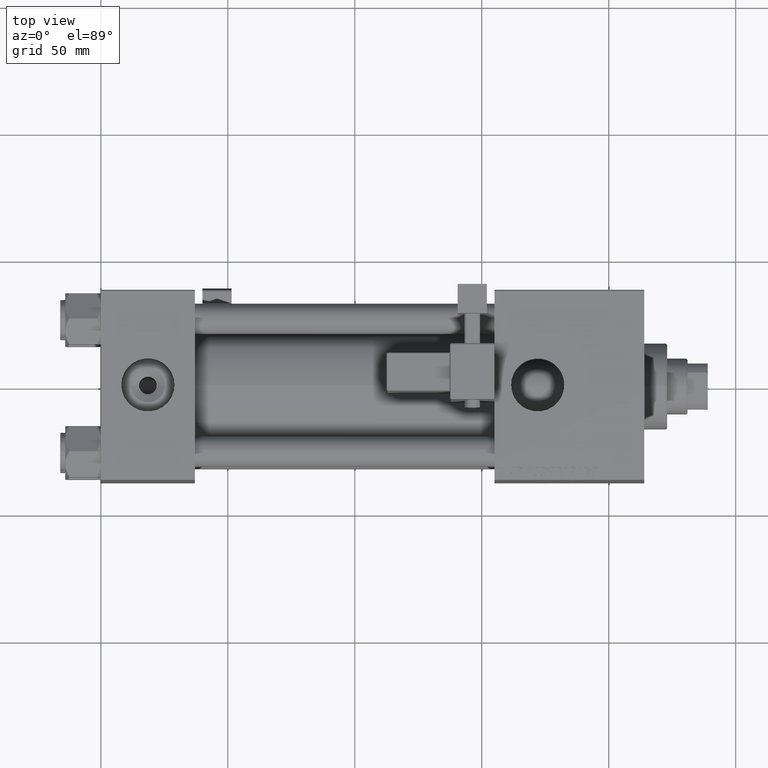
[diagram: clean part render]
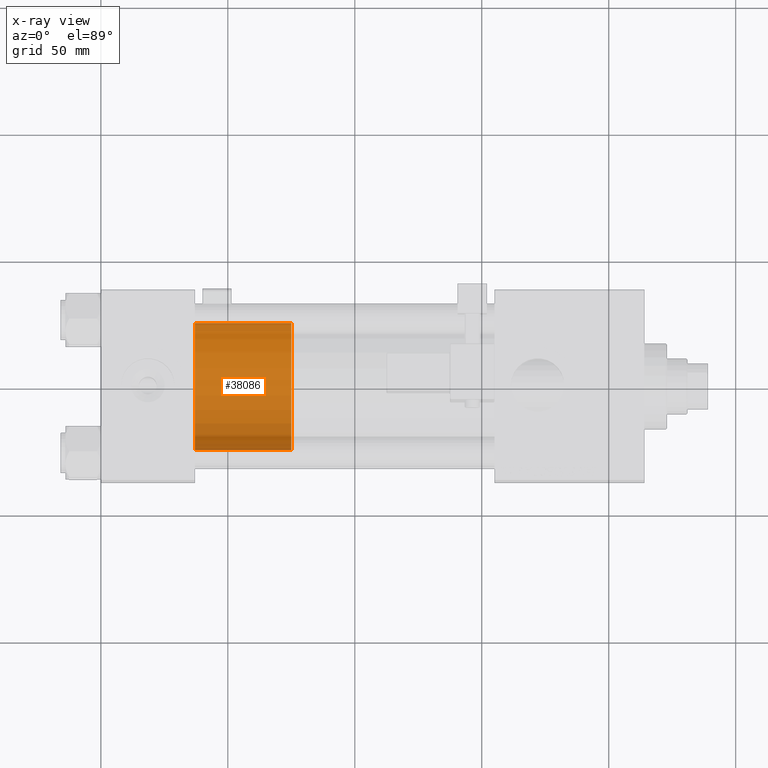
[diagram: x-ray — body ghosted, one internal face saturated and labeled with its STEP entity id]
A machine part, top view, then the same camera in x-ray: the body is ghosted and one INTERNAL B-rep face — a face not visible from any outside direction — is saturated and labeled: STEP entity #38086.
In plain terms, the highlighted cylindrical surface (partial cylindrical patch) has radius 25 mm, axis along (-1, 0, 0).
Its self-contained STEP definition (entity closure, byte-faithful):
#1955 = ORIENTED_EDGE ( 'NONE', *, *, #47544, .T. ) ;
#6400 = CARTESIAN_POINT ( 'NONE',  ( 0.000000000000000000, 0.000000000000000000, 38.00000000000000000 ) ) ;
#8952 = ORIENTED_EDGE ( 'NONE', *, *, #12469, .T. ) ;
#9104 = DIRECTION ( 'NONE',  ( 0.000000000000000000, 0.000000000000000000, 1.000000000000000000 ) ) ;
#10400 = LINE ( 'NONE', #46798, #52294 ) ;
#11454 = CARTESIAN_POINT ( 'NONE',  ( -25.00000000000000000, 0.000000000000000000, 38.00000000000000000 ) ) ;
#12469 = EDGE_CURVE ( 'NONE', #36473, #19232, #51800, .T. ) ;
#12818 = DIRECTION ( 'NONE',  ( 1.000000000000000000, 0.000000000000000000, 0.000000000000000000 ) ) ;
#13342 = CARTESIAN_POINT ( 'NONE',  ( 0.000000000000000000, 0.000000000000000000, 0.000000000000000000 ) ) ;
#14903 = DIRECTION ( 'NONE',  ( -0.000000000000000000, -0.000000000000000000, -1.000000000000000000 ) ) ;
#18380 = FACE_OUTER_BOUND ( 'NONE', #38824, .T. ) ;
#19232 = VERTEX_POINT ( 'NONE', #47188 ) ;
#22337 = DIRECTION ( 'NONE',  ( 1.000000000000000000, 0.000000000000000000, 0.000000000000000000 ) ) ;
#22347 = ORIENTED_EDGE ( 'NONE', *, *, #25884, .F. ) ;
#22595 = DIRECTION ( 'NONE',  ( 0.000000000000000000, 0.000000000000000000, 1.000000000000000000 ) ) ;
#24205 = CARTESIAN_POINT ( 'NONE',  ( 25.00000000000000000, 3.061616997868383043E-15, 0.000000000000000000 ) ) ;
#25884 = EDGE_CURVE ( 'NONE', #43197, #36458, #40094, .T. ) ;
#25962 = AXIS2_PLACEMENT_3D ( 'NONE', #46543, #27114, #30056 ) ;
#27114 = DIRECTION ( 'NONE',  ( -0.000000000000000000, -0.000000000000000000, -1.000000000000000000 ) ) ;
#30056 = DIRECTION ( 'NONE',  ( -1.000000000000000000, 0.000000000000000000, 0.000000000000000000 ) ) ;
#34305 = CYLINDRICAL_SURFACE ( 'NONE', #25962, 25.00000000000000000 ) ;
#36458 = VERTEX_POINT ( 'NONE', #11454 ) ;
#36473 = VERTEX_POINT ( 'NONE', #24205 ) ;
#37176 = CARTESIAN_POINT ( 'NONE',  ( 25.00000000000000000, 3.061616997868383043E-15, 38.00000000000000000 ) ) ;
#38067 = EDGE_CURVE ( 'NONE', #36458, #19232, #10400, .T. ) ;
#38086 = ADVANCED_FACE ( 'NONE', ( #18380 ), #34305, .T. ) ;
#38824 = EDGE_LOOP ( 'NONE', ( #22347, #1955, #8952, #45701 ) ) ;
#40094 = CIRCLE ( 'NONE', #45219, 25.00000000000000000 ) ;
#40763 = AXIS2_PLACEMENT_3D ( 'NONE', #13342, #9104, #12818 ) ;
#41787 = DIRECTION ( 'NONE',  ( -0.000000000000000000, -0.000000000000000000, -1.000000000000000000 ) ) ;
#43197 = VERTEX_POINT ( 'NONE', #37176 ) ;
#45219 = AXIS2_PLACEMENT_3D ( 'NONE', #6400, #22595, #22337 ) ;
#45701 = ORIENTED_EDGE ( 'NONE', *, *, #38067, .F. ) ;
#46032 = LINE ( 'NONE', #50286, #50089 ) ;
#46543 = CARTESIAN_POINT ( 'NONE',  ( 0.000000000000000000, 0.000000000000000000, 38.00000000000000000 ) ) ;
#46798 = CARTESIAN_POINT ( 'NONE',  ( -25.00000000000000000, 0.000000000000000000, 38.00000000000000000 ) ) ;
#47188 = CARTESIAN_POINT ( 'NONE',  ( -25.00000000000000000, 0.000000000000000000, 0.000000000000000000 ) ) ;
#47544 = EDGE_CURVE ( 'NONE', #43197, #36473, #46032, .T. ) ;
#50089 = VECTOR ( 'NONE', #41787, 1000.000000000000000 ) ;
#50286 = CARTESIAN_POINT ( 'NONE',  ( 25.00000000000000000, 3.061616997868383043E-15, 38.00000000000000000 ) ) ;
#51800 = CIRCLE ( 'NONE', #40763, 25.00000000000000000 ) ;
#52294 = VECTOR ( 'NONE', #14903, 1000.000000000000000 ) ;